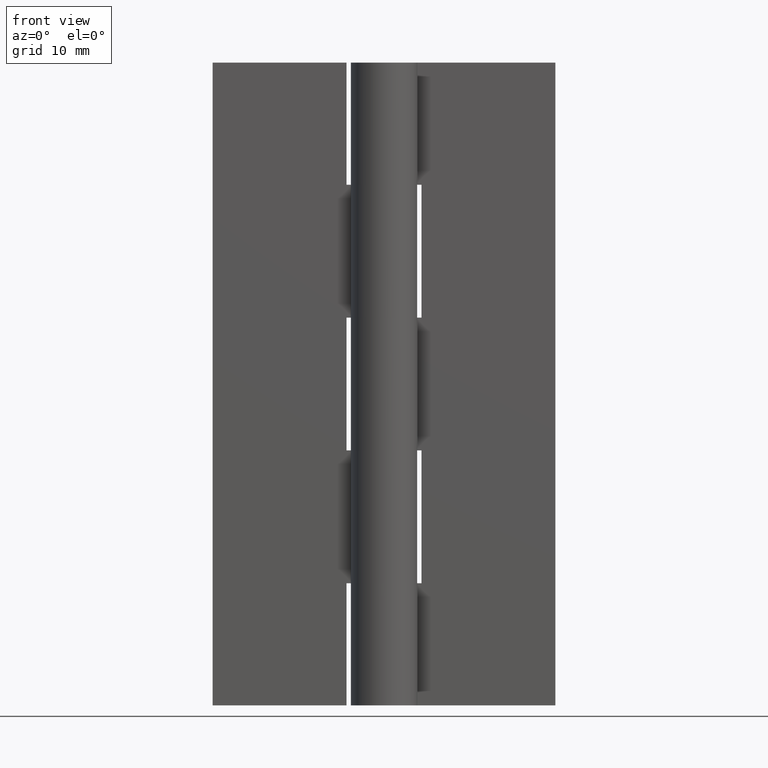
[diagram: clean part render]
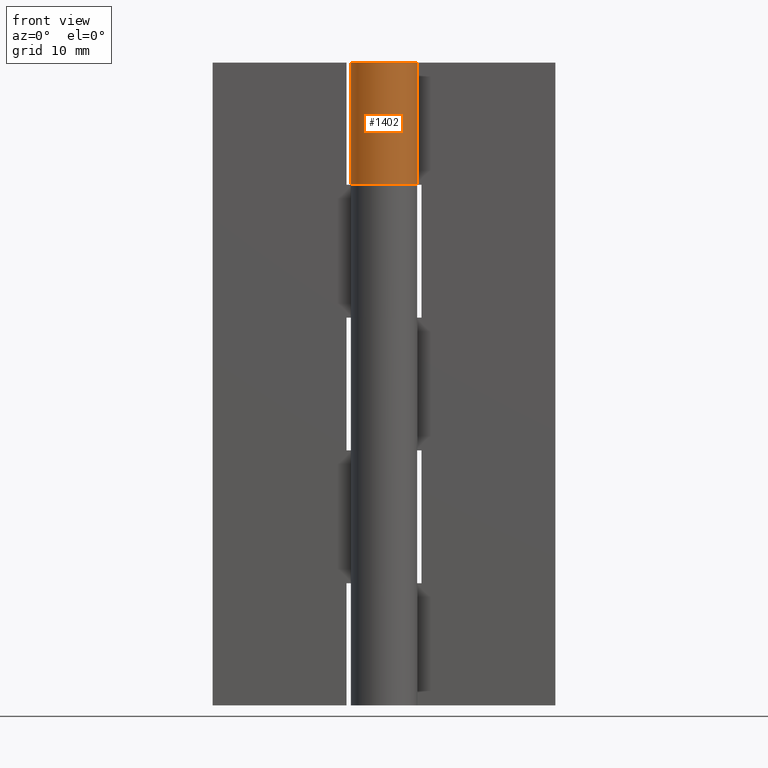
[diagram: same view with one face highlighted and labeled with its STEP entity id]
A machine part, front view. The second image highlights one B-rep face of the part: STEP entity #1402.
In plain terms, the highlighted face is a freeform B-spline surface patch.
Its self-contained STEP definition (entity closure, byte-faithful):
#1047=CARTESIAN_POINT('',(2.739981751764050,1.450000000000000,48.600006000000000));
#1048=VERTEX_POINT('',#1047);
#1054=CARTESIAN_POINT('',(0.0,3.099998000000050,48.600006000000000));
#1055=VERTEX_POINT('',#1054);
#1056=CARTESIAN_POINT('',(2.739981751764050,1.450000000000000,48.600006000000000));
#1057=CARTESIAN_POINT('',(3.842027408336779,-0.632471143840449,48.600006000000000));
#1058=CARTESIAN_POINT('',(2.130594885355309,-2.251790737784744,48.600006000000000));
#1059=CARTESIAN_POINT('',(0.419162362373838,-3.871110331729040,48.600006000000000));
#1060=CARTESIAN_POINT('',(-1.599218559171949,-2.655655344977875,48.600006000000000));
#1061=CARTESIAN_POINT('',(-3.617599480717734,-1.440200358226708,48.600006000000000));
#1062=CARTESIAN_POINT('',(-2.986848545660751,0.829898189834442,48.600006000000000));
#1063=CARTESIAN_POINT('',(-2.356097610603767,3.099996737895593,48.600006000000000));
#1064=CARTESIAN_POINT('',(0.0,3.099998000000050,48.600006000000000));
#1072=(BOUNDED_CURVE()B_SPLINE_CURVE(2,(#1056,#1057,#1058,#1059,#1060,#1061,#1062,#1063,#1064),.UNSPECIFIED.,.F.,.U.)B_SPLINE_CURVE_WITH_KNOTS((3,2,2,2,3),(0.0,0.250000000000000,0.500000000000000,0.750000000000000,1.0),.UNSPECIFIED.)CURVE()GEOMETRIC_REPRESENTATION_ITEM()RATIONAL_B_SPLINE_CURVE((1.0,0.796150117301085,1.0,0.796150117301085,1.0,0.796150117301085,1.0,0.796150117301085,1.0))REPRESENTATION_ITEM(''));
#1073=EDGE_CURVE('',#1048,#1055,#1072,.T.);
#1075=CARTESIAN_POINT('',(0.003521362805220,3.099998000000050,48.600006000000000));
#1076=VERTEX_POINT('',#1075);
#1077=CARTESIAN_POINT('',(0.003521362805220,3.099998000000050,48.600006000000000));
#1078=CARTESIAN_POINT('',(0.0,3.099998000000050,48.600006000000000));
#1079=QUASI_UNIFORM_CURVE('',1,(#1077,#1078),.UNSPECIFIED.,.F.,.U.);
#1080=EDGE_CURVE('',#1076,#1055,#1079,.T.);
#1215=CARTESIAN_POINT('',(0.003521362805220,3.099998000000000,60.0));
#1216=VERTEX_POINT('',#1215);
#1222=CARTESIAN_POINT('',(2.739981751764050,1.450000000000000,60.0));
#1223=VERTEX_POINT('',#1222);
#1224=CARTESIAN_POINT('',(2.739981751764050,1.450000000000002,60.0));
#1225=CARTESIAN_POINT('',(3.842352259281344,-0.633086258124314,60.0));
#1226=CARTESIAN_POINT('',(2.129955333572986,-2.252396562993291,60.0));
#1227=CARTESIAN_POINT('',(0.417558407864627,-3.871706867862268,60.0));
#1228=CARTESIAN_POINT('',(-1.600726611546711,-2.654745621540072,60.0));
#1229=CARTESIAN_POINT('',(-3.619011630958046,-1.437784375217877,60.0));
#1230=CARTESIAN_POINT('',(-2.986140433580759,0.832445380150624,60.0));
#1231=CARTESIAN_POINT('',(-2.353269236203469,3.102675135519129,60.0));
#1232=CARTESIAN_POINT('',(0.003521362805217,3.099997999999999,60.0));
#1240=(BOUNDED_CURVE()B_SPLINE_CURVE(2,(#1224,#1225,#1226,#1227,#1228,#1229,#1230,#1231,#1232),.UNSPECIFIED.,.F.,.U.)B_SPLINE_CURVE_WITH_KNOTS((3,2,2,2,3),(0.0,0.250000000000000,0.500000000000000,0.750000000000000,1.0),.UNSPECIFIED.)CURVE()GEOMETRIC_REPRESENTATION_ITEM()RATIONAL_B_SPLINE_CURVE((1.0,0.796064190964140,1.0,0.796064190964140,1.0,0.796064190964140,1.0,0.796064190964140,1.0))REPRESENTATION_ITEM(''));
#1241=EDGE_CURVE('',#1223,#1216,#1240,.T.);
#1354=CARTESIAN_POINT('',(2.739981751764050,1.450000000000000,48.600006000000000));
#1355=CARTESIAN_POINT('',(2.739981751764050,1.450000000000000,60.0));
#1356=QUASI_UNIFORM_CURVE('',1,(#1354,#1355),.UNSPECIFIED.,.F.,.U.);
#1357=EDGE_CURVE('',#1048,#1223,#1356,.T.);
#1369=CARTESIAN_POINT('',(2.699834918711258,1.523447213298633,48.315006150000002));
#1370=CARTESIAN_POINT('',(2.699834918711258,1.523447213298633,60.292124846250012));
#1371=CARTESIAN_POINT('',(4.558915972059316,-1.771193979864720,48.315006149999988));
#1372=CARTESIAN_POINT('',(4.558915972059316,-1.771193979864720,60.292124846249990));
#1373=CARTESIAN_POINT('',(0.963178343373894,-2.946572157415379,48.315006150000002));
#1374=CARTESIAN_POINT('',(0.963178343373894,-2.946572157415379,60.292124846250012));
#1375=CARTESIAN_POINT('',(-2.632559285311528,-4.121950334966037,48.315006149999988));
#1376=CARTESIAN_POINT('',(-2.632559285311528,-4.121950334966037,60.292124846249990));
#1377=CARTESIAN_POINT('',(-3.078396003541830,-0.365346473060419,48.315006150000002));
#1378=CARTESIAN_POINT('',(-3.078396003541830,-0.365346473060419,60.292124846250012));
#1379=CARTESIAN_POINT('',(-3.524232721772133,3.391257388845200,48.315006149999988));
#1380=CARTESIAN_POINT('',(-3.524232721772133,3.391257388845200,60.292124846249990));
#1381=CARTESIAN_POINT('',(0.246733547457015,3.090165457796601,48.315006150000002));
#1382=CARTESIAN_POINT('',(0.246733547457015,3.090165457796601,60.292124846250012));
#1390=(BOUNDED_SURFACE()B_SPLINE_SURFACE(1,2,((#1369,#1371,#1373,#1375,#1377,#1379,#1381),(#1370,#1372,#1374,#1376,#1378,#1380,#1382)),.UNSPECIFIED.,.F.,.F.,.U.)B_SPLINE_SURFACE_WITH_KNOTS((2,2),(3,2,2,3),(0.0,11.977118696250010),(0.0,5.870281529289078,11.740563058578161,17.610844587867231),.UNSPECIFIED.)GEOMETRIC_REPRESENTATION_ITEM()RATIONAL_B_SPLINE_SURFACE(((1.0,0.633830967398710,1.0,0.633830967398710,1.0,0.633830967398710,1.0),(1.0,0.633830967398710,1.0,0.633830967398710,1.0,0.633830967398710,1.0)))REPRESENTATION_ITEM('')SURFACE());
#1391=ORIENTED_EDGE('',*,*,#1080,.T.);
#1392=ORIENTED_EDGE('',*,*,#1073,.F.);
#1393=ORIENTED_EDGE('',*,*,#1357,.T.);
#1394=ORIENTED_EDGE('',*,*,#1241,.T.);
#1395=CARTESIAN_POINT('',(0.003521362805220,3.099998000000050,48.600006000000000));
#1396=CARTESIAN_POINT('',(0.003521362805220,3.099998000000000,60.0));
#1397=QUASI_UNIFORM_CURVE('',1,(#1395,#1396),.UNSPECIFIED.,.F.,.U.);
#1398=EDGE_CURVE('',#1076,#1216,#1397,.T.);
#1399=ORIENTED_EDGE('',*,*,#1398,.F.);
#1400=EDGE_LOOP('',(#1391,#1392,#1393,#1394,#1399));
#1401=FACE_OUTER_BOUND('',#1400,.T.);
#1402=ADVANCED_FACE('',(#1401),#1390,.T.);